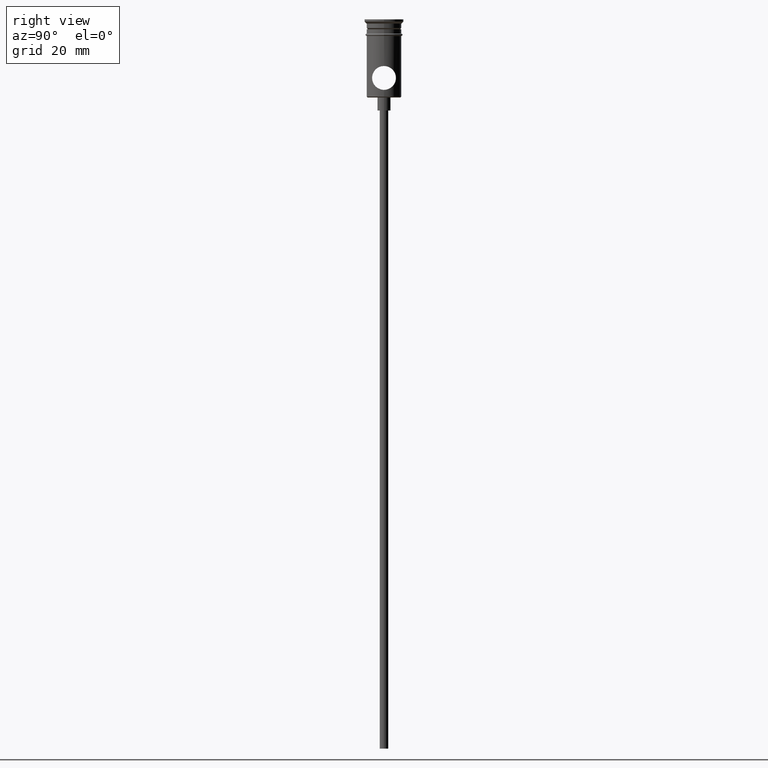
[diagram: clean part render]
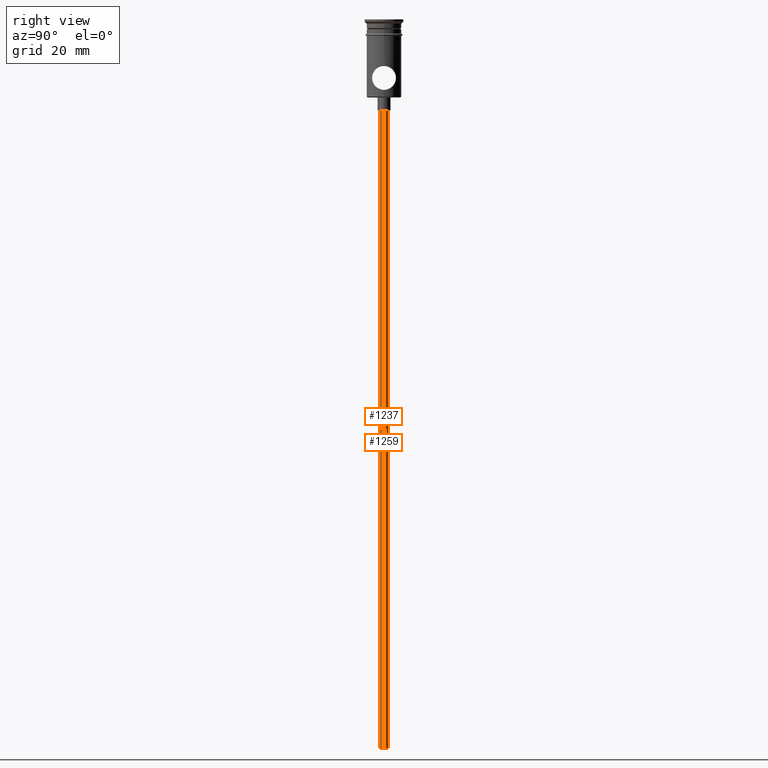
[diagram: same view with one multi-face feature highlighted, each face labeled with its STEP entity id]
A machine part, right view. The highlighted faces form ONE feature: a constant-radius fillet chain: 2 tangent blend faces with common blend radius 1 mm. The faces share edges in the B-rep.
Their STEP definitions:
[1] entity #1259 (Cylinder):
#10 = EDGE_CURVE ( 'NONE', #1414, #1321, #1043, .T. ) ;
#59 = DIRECTION ( 'NONE',  ( -0.000000000000000000, -0.000000000000000000, 1.000000000000000000 ) ) ;
#74 = CARTESIAN_POINT ( 'NONE',  ( -0.9999999999999997780, 1.224646799147352961E-16, -167.9999999999999716 ) ) ;
#127 = AXIS2_PLACEMENT_3D ( 'NONE', #708, #829, #1354 ) ;
#196 = VERTEX_POINT ( 'NONE', #1123 ) ;
#255 = EDGE_CURVE ( 'NONE', #1321, #196, #382, .T. ) ;
#272 = VECTOR ( 'NONE', #477, 1000.000000000000000 ) ;
#300 = CARTESIAN_POINT ( 'NONE',  ( -0.9999999999999997780, 1.224646799147352961E-16, -20.99999999999999645 ) ) ;
#376 = CYLINDRICAL_SURFACE ( 'NONE', #1076, 0.9999999999999997780 ) ;
#382 = CIRCLE ( 'NONE', #878, 0.9999999999999997780 ) ;
#415 = EDGE_CURVE ( 'NONE', #1414, #513, #1078, .T. ) ;
#417 = CARTESIAN_POINT ( 'NONE',  ( -0.9999999999999997780, 1.224646799147352961E-16, -167.9999999999999716 ) ) ;
#465 = CARTESIAN_POINT ( 'NONE',  ( 0.000000000000000000, 0.000000000000000000, -20.99999999999999645 ) ) ;
#477 = DIRECTION ( 'NONE',  ( -0.000000000000000000, -0.000000000000000000, 1.000000000000000000 ) ) ;
#499 = DIRECTION ( 'NONE',  ( 1.000000000000000000, 0.000000000000000000, 0.000000000000000000 ) ) ;
#513 = VERTEX_POINT ( 'NONE', #1154 ) ;
#548 = ORIENTED_EDGE ( 'NONE', *, *, #10, .T. ) ;
#579 = CARTESIAN_POINT ( 'NONE',  ( 0.9999999999999997780, 0.000000000000000000, -167.9999999999999716 ) ) ;
#611 = EDGE_LOOP ( 'NONE', ( #919, #548, #963, #685 ) ) ;
#615 = FACE_OUTER_BOUND ( 'NONE', #611, .T. ) ;
#635 = EDGE_CURVE ( 'NONE', #513, #196, #805, .T. ) ;
#685 = ORIENTED_EDGE ( 'NONE', *, *, #635, .F. ) ;
#708 = CARTESIAN_POINT ( 'NONE',  ( 0.000000000000000000, 0.000000000000000000, -167.9999999999999716 ) ) ;
#797 = DIRECTION ( 'NONE',  ( -1.000000000000000000, 0.000000000000000000, 0.000000000000000000 ) ) ;
#805 = LINE ( 'NONE', #579, #272 ) ;
#829 = DIRECTION ( 'NONE',  ( 0.000000000000000000, 0.000000000000000000, -1.000000000000000000 ) ) ;
#854 = VECTOR ( 'NONE', #943, 1000.000000000000000 ) ;
#878 = AXIS2_PLACEMENT_3D ( 'NONE', #465, #906, #797 ) ;
#906 = DIRECTION ( 'NONE',  ( 0.000000000000000000, 0.000000000000000000, -1.000000000000000000 ) ) ;
#919 = ORIENTED_EDGE ( 'NONE', *, *, #415, .F. ) ;
#943 = DIRECTION ( 'NONE',  ( -0.000000000000000000, -0.000000000000000000, 1.000000000000000000 ) ) ;
#963 = ORIENTED_EDGE ( 'NONE', *, *, #255, .T. ) ;
#1043 = LINE ( 'NONE', #74, #854 ) ;
#1076 = AXIS2_PLACEMENT_3D ( 'NONE', #1254, #59, #499 ) ;
#1078 = CIRCLE ( 'NONE', #127, 0.9999999999999997780 ) ;
#1123 = CARTESIAN_POINT ( 'NONE',  ( 0.9999999999999997780, 0.000000000000000000, -20.99999999999999645 ) ) ;
#1154 = CARTESIAN_POINT ( 'NONE',  ( 0.9999999999999997780, 0.000000000000000000, -167.9999999999999716 ) ) ;
#1254 = CARTESIAN_POINT ( 'NONE',  ( 0.000000000000000000, 0.000000000000000000, -167.9999999999999716 ) ) ;
#1259 = ADVANCED_FACE ( 'NONE', ( #615 ), #376, .T. ) ;
#1321 = VERTEX_POINT ( 'NONE', #300 ) ;
#1354 = DIRECTION ( 'NONE',  ( -1.000000000000000000, 0.000000000000000000, 0.000000000000000000 ) ) ;
#1414 = VERTEX_POINT ( 'NONE', #417 ) ;
[2] entity #1237 (Cylinder):
#10 = EDGE_CURVE ( 'NONE', #1414, #1321, #1043, .T. ) ;
#12 = ORIENTED_EDGE ( 'NONE', *, *, #471, .F. ) ;
#74 = CARTESIAN_POINT ( 'NONE',  ( -0.9999999999999997780, 1.224646799147352961E-16, -167.9999999999999716 ) ) ;
#85 = ORIENTED_EDGE ( 'NONE', *, *, #134, .T. ) ;
#134 = EDGE_CURVE ( 'NONE', #196, #1321, #212, .T. ) ;
#164 = DIRECTION ( 'NONE',  ( -0.000000000000000000, -0.000000000000000000, 1.000000000000000000 ) ) ;
#196 = VERTEX_POINT ( 'NONE', #1123 ) ;
#212 = CIRCLE ( 'NONE', #313, 0.9999999999999997780 ) ;
#233 = CIRCLE ( 'NONE', #1023, 0.9999999999999997780 ) ;
#246 = DIRECTION ( 'NONE',  ( 0.000000000000000000, 0.000000000000000000, -1.000000000000000000 ) ) ;
#253 = CARTESIAN_POINT ( 'NONE',  ( 0.000000000000000000, 0.000000000000000000, -167.9999999999999716 ) ) ;
#272 = VECTOR ( 'NONE', #477, 1000.000000000000000 ) ;
#300 = CARTESIAN_POINT ( 'NONE',  ( -0.9999999999999997780, 1.224646799147352961E-16, -20.99999999999999645 ) ) ;
#303 = ORIENTED_EDGE ( 'NONE', *, *, #10, .F. ) ;
#313 = AXIS2_PLACEMENT_3D ( 'NONE', #1345, #246, #582 ) ;
#417 = CARTESIAN_POINT ( 'NONE',  ( -0.9999999999999997780, 1.224646799147352961E-16, -167.9999999999999716 ) ) ;
#471 = EDGE_CURVE ( 'NONE', #513, #1414, #233, .T. ) ;
#477 = DIRECTION ( 'NONE',  ( -0.000000000000000000, -0.000000000000000000, 1.000000000000000000 ) ) ;
#513 = VERTEX_POINT ( 'NONE', #1154 ) ;
#567 = CARTESIAN_POINT ( 'NONE',  ( 0.000000000000000000, 0.000000000000000000, -167.9999999999999716 ) ) ;
#579 = CARTESIAN_POINT ( 'NONE',  ( 0.9999999999999997780, 0.000000000000000000, -167.9999999999999716 ) ) ;
#582 = DIRECTION ( 'NONE',  ( -1.000000000000000000, 0.000000000000000000, 0.000000000000000000 ) ) ;
#635 = EDGE_CURVE ( 'NONE', #513, #196, #805, .T. ) ;
#726 = DIRECTION ( 'NONE',  ( 1.000000000000000000, 0.000000000000000000, 0.000000000000000000 ) ) ;
#764 = AXIS2_PLACEMENT_3D ( 'NONE', #567, #164, #726 ) ;
#805 = LINE ( 'NONE', #579, #272 ) ;
#810 = DIRECTION ( 'NONE',  ( 0.000000000000000000, 0.000000000000000000, -1.000000000000000000 ) ) ;
#854 = VECTOR ( 'NONE', #943, 1000.000000000000000 ) ;
#935 = ORIENTED_EDGE ( 'NONE', *, *, #635, .T. ) ;
#943 = DIRECTION ( 'NONE',  ( -0.000000000000000000, -0.000000000000000000, 1.000000000000000000 ) ) ;
#996 = CYLINDRICAL_SURFACE ( 'NONE', #764, 0.9999999999999997780 ) ;
#1023 = AXIS2_PLACEMENT_3D ( 'NONE', #253, #810, #1025 ) ;
#1025 = DIRECTION ( 'NONE',  ( -1.000000000000000000, 0.000000000000000000, 0.000000000000000000 ) ) ;
#1043 = LINE ( 'NONE', #74, #854 ) ;
#1067 = EDGE_LOOP ( 'NONE', ( #303, #12, #935, #85 ) ) ;
#1106 = FACE_OUTER_BOUND ( 'NONE', #1067, .T. ) ;
#1123 = CARTESIAN_POINT ( 'NONE',  ( 0.9999999999999997780, 0.000000000000000000, -20.99999999999999645 ) ) ;
#1154 = CARTESIAN_POINT ( 'NONE',  ( 0.9999999999999997780, 0.000000000000000000, -167.9999999999999716 ) ) ;
#1237 = ADVANCED_FACE ( 'NONE', ( #1106 ), #996, .T. ) ;
#1321 = VERTEX_POINT ( 'NONE', #300 ) ;
#1345 = CARTESIAN_POINT ( 'NONE',  ( 0.000000000000000000, 0.000000000000000000, -20.99999999999999645 ) ) ;
#1414 = VERTEX_POINT ( 'NONE', #417 ) ;